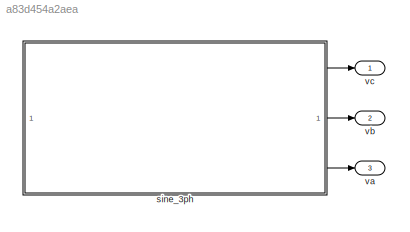
MODEL slx_a83d454a2aea
KIND model
CONFIG AbsTol = auto
CONFIG EnableMultiTasking = off
CONFIG FixedStep = auto
CONFIG InitFcn = f_sim=1/2e6;\nfsw = 65;             % kHz\ntsw = 1/(fsw*1e3);    % sec\nt_ss = tsw/30;        % sec
CONFIG MaxStep = auto
CONFIG MinStep = auto
CONFIG RelTol = 1e-3
CONFIG SampleTimeConstraint = Unconstrained
CONFIG SolverName = FixedStepDiscrete
CONFIG StartTime = 0.0
CONFIG StopTime = 10/50
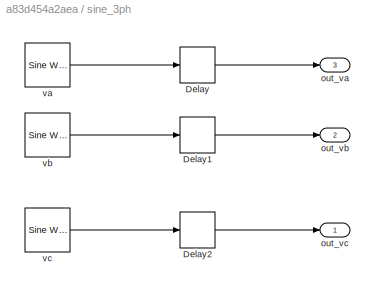
BLOCK [SubSystem] sine_3ph
BLOCK [Outport] sine_3ph/ out_va
  Port = 3
BLOCK [Delay] sine_3ph/Delay
  DelayLength = 1
  InputPortMap = u0
  InputProcessing = Columns as channels (frame based)
BLOCK [Delay] sine_3ph/Delay1
  DelayLength = 1
  InputPortMap = u0
  InputProcessing = Columns as channels (frame based)
BLOCK [Delay] sine_3ph/Delay2
  DelayLength = 1
  InputPortMap = u0
  InputProcessing = Columns as channels (frame based)
BLOCK [Outport] sine_3ph/out_vb
  Port = 2
BLOCK [Outport] sine_3ph/out_vc
BLOCK [Reference] sine_3ph/va  REF=dspsrcs4/Sine Wave
  LibrarySourceBlock = dsphdlsupportsrcs/Sine Wave
  SourceBlock = dspsrcs4/Sine Wave
  SourceType = Sine Wave
BLOCK [Reference] sine_3ph/vb  REF=dspsrcs4/Sine Wave
  LibrarySourceBlock = dsphdlsupportsrcs/Sine Wave
  SourceBlock = dspsrcs4/Sine Wave
  SourceType = Sine Wave
BLOCK [Reference] sine_3ph/vc  REF=dspsrcs4/Sine Wave
  LibrarySourceBlock = dsphdlsupportsrcs/Sine Wave
  SourceBlock = dspsrcs4/Sine Wave
  SourceType = Sine Wave
BLOCK [Outport] va
  Port = 3
BLOCK [Outport] vb
  Port = 2
BLOCK [Outport] vc
LINE sine_3ph/Delay1:1 -> sine_3ph/out_vb:1
LINE sine_3ph/Delay2:1 -> sine_3ph/out_vc:1
LINE sine_3ph/Delay:1 -> sine_3ph/ out_va:1
LINE sine_3ph/va:1 -> sine_3ph/Delay:1
LINE sine_3ph/vb:1 -> sine_3ph/Delay1:1
LINE sine_3ph/vc:1 -> sine_3ph/Delay2:1
LINE sine_3ph:1 -> vc:1
LINE sine_3ph:2 -> vb:1
LINE sine_3ph:3 -> va:1
